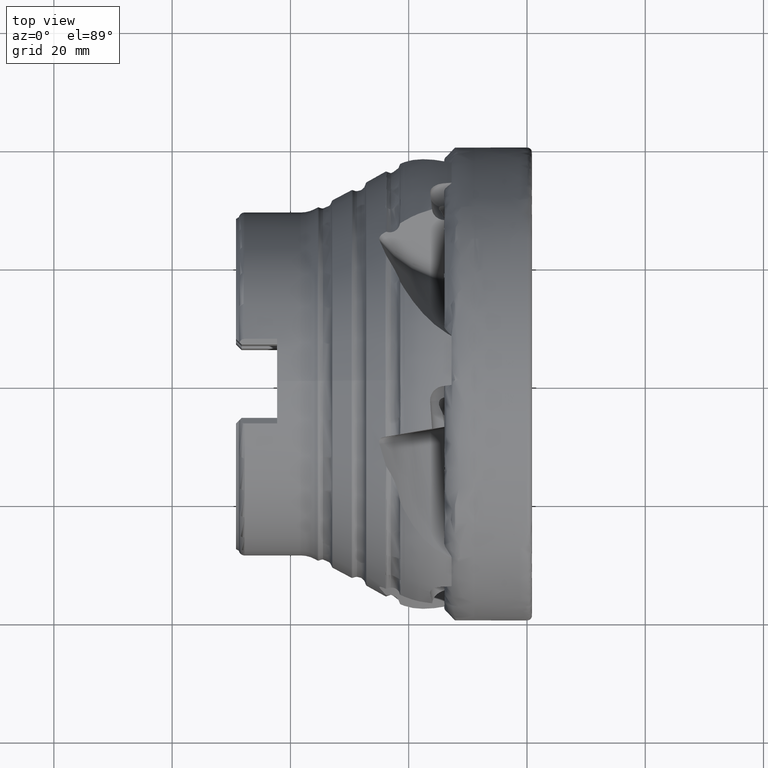
[diagram: clean part render]
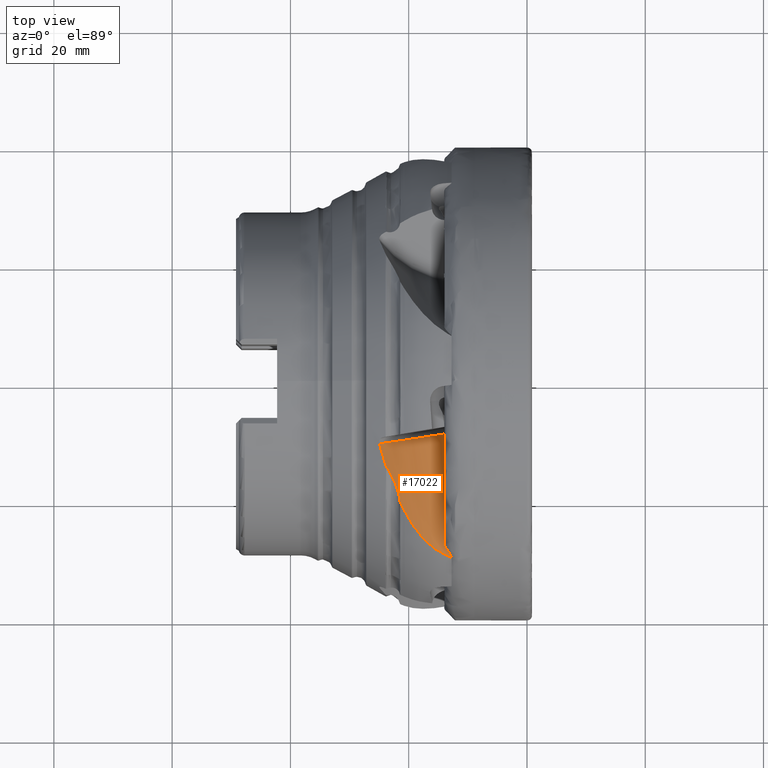
[diagram: same view with one face highlighted and labeled with its STEP entity id]
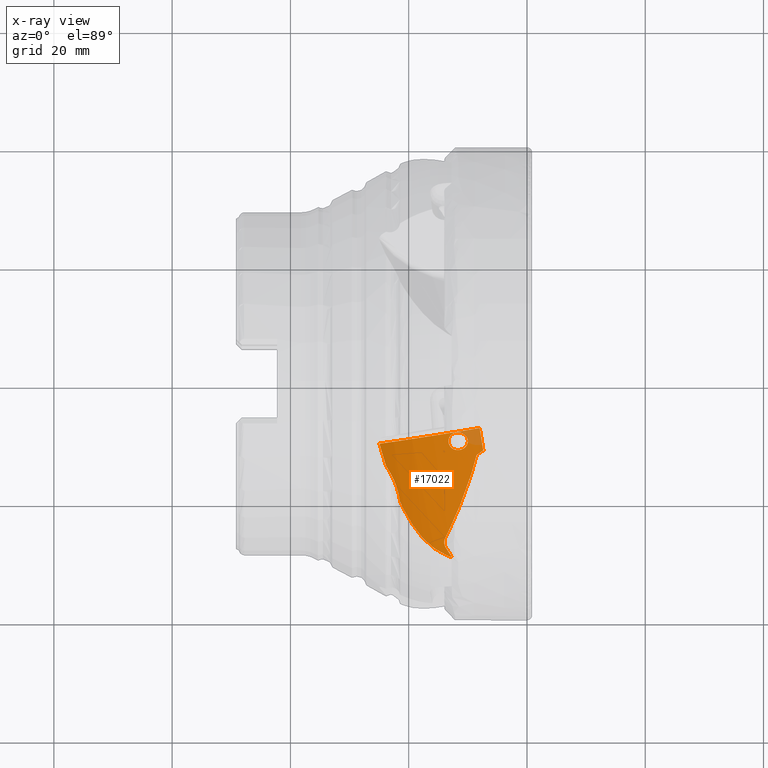
[diagram: x-ray of the same camera — body ghosted, the highlighted face saturated]
A machine part, top view. The second image highlights one B-rep face of the part: STEP entity #17022.
The next image is the same camera in x-ray: the body ghosted, the highlighted face saturated — about 3% of this face is hidden behind the body in this view.
In plain terms, the highlighted cylindrical surface (partial cylindrical patch) has radius 20 mm, axis along (-0.1638, 0.9865, 0).
Its self-contained STEP definition (entity closure, byte-faithful):
#49 = CARTESIAN_POINT ( 'NONE',  ( -20.71060675804168800, -21.95512964975771200, 30.57864173130839100 ) ) ;
#60 = CARTESIAN_POINT ( 'NONE',  ( -9.397821388298853100, -15.60492301776988100, 24.17309124987982500 ) ) ;
#121 = CARTESIAN_POINT ( 'NONE',  ( -10.63285918720822200, -19.18027089370615500, 24.49271617684729200 ) ) ;
#186 = CARTESIAN_POINT ( 'NONE',  ( -8.707843855915765400, -13.05600552155609700, 24.05850461342041100 ) ) ;
#236 = CARTESIAN_POINT ( 'NONE',  ( -12.14080814010427500, -11.56695254131454400, 24.55310286008555600 ) ) ;
#324 = CARTESIAN_POINT ( 'NONE',  ( -8.535374990792947300, -12.44977749979089600, 24.03971555522554800 ) ) ;
#390 = CARTESIAN_POINT ( 'NONE',  ( -12.85257890674882300, -29.49807343720421900, 25.80901738451186100 ) ) ;
#438 = CARTESIAN_POINT ( 'NONE',  ( -11.84042649782487200, -11.62090519122286700, 24.48624531469310400 ) ) ;
#454 = CARTESIAN_POINT ( 'NONE',  ( -12.81631945885016300, -29.60003660495140900, 25.80032052521527700 ) ) ;
#549 = CARTESIAN_POINT ( 'NONE',  ( -23.90414891483516200, -14.22991712703846900, 33.01407805609664300 ) ) ;
#554 = CARTESIAN_POINT ( 'NONE',  ( -13.09425404078191200, -9.350792459093611300, 24.70084090734974700 ) ) ;
#594 = CARTESIAN_POINT ( 'NONE',  ( -13.90066158967363000, -27.79125069774897800, 26.17292710160526400 ) ) ;
#688 = CARTESIAN_POINT ( 'NONE',  ( -12.10703246109797100, -8.660820440366695300, 24.43685761605888000 ) ) ;
#752 = CARTESIAN_POINT ( 'NONE',  ( -13.24726844424628400, -9.735414327371119100, 24.76062778497701400 ) ) ;
#769 = VERTEX_POINT ( 'NONE', #49 ) ;
#820 = CARTESIAN_POINT ( 'NONE',  ( -10.71392062296607700, -8.892441991227062900, 24.20017841245630000 ) ) ;
#1051 = VERTEX_POINT ( 'NONE', #6121 ) ;
#1250 = ORIENTED_EDGE ( 'NONE', *, *, #5968, .T. ) ;
#1551 = EDGE_CURVE ( 'NONE', #10118, #17521, #12502, .T. ) ;
#1560 = LINE ( 'NONE', #18422, #18521 ) ;
#1600 = CARTESIAN_POINT ( 'NONE',  ( -9.258180303263966200, -15.20758431430965800, 24.14726231843242500 ) ) ;
#1729 = CARTESIAN_POINT ( 'NONE',  ( -13.57502883414873700, -26.03335052417167400, 25.87552137378398200 ) ) ;
#2016 = VERTEX_POINT ( 'NONE', #5451 ) ;
#2032 = CARTESIAN_POINT ( 'NONE',  ( -23.94008879940601600, -14.11942172200002700, 33.04056395646595900 ) ) ;
#2073 = CARTESIAN_POINT ( 'NONE',  ( -12.74511561597952500, -8.974780038684503600, 24.59510663976425300 ) ) ;
#2106 = CARTESIAN_POINT ( 'NONE',  ( -13.14592246701856500, -29.03562113048948800, 25.90791619388559000 ) ) ;
#2177 = CARTESIAN_POINT ( 'NONE',  ( -12.76346602591059900, -29.72219532385015100, 25.78570960845969000 ) ) ;
#2198 = CARTESIAN_POINT ( 'NONE',  ( -17.08778751747197000, -27.08694863838224600, 28.06800678204128700 ) ) ;
#2207 = CARTESIAN_POINT ( 'NONE',  ( -12.48699570700334300, -8.809023359418754100, 24.52689547820032000 ) ) ;
#2253 = CARTESIAN_POINT ( 'NONE',  ( -22.35936535405833000, -17.13350953323777400, 31.56416039594680400 ) ) ;
#2262 = CARTESIAN_POINT ( 'NONE',  ( -13.42999999999995900, -29.51919403806454100, 26.08194901350538700 ) ) ;
#2314 = CARTESIAN_POINT ( 'NONE',  ( -21.53048751389065500, -19.92150285845965000, 31.12355815489597800 ) ) ;
#2336 = CARTESIAN_POINT ( 'NONE',  ( -11.49132761578521700, -8.626543230571817500, 24.31638937590887300 ) ) ;
#2456 = ORIENTED_EDGE ( 'NONE', *, *, #8383, .T. ) ;
#2462 = CARTESIAN_POINT ( 'NONE',  ( -20.28709862184996400, -22.77619035610779700, 30.26569559976471900 ) ) ;
#2772 = CARTESIAN_POINT ( 'NONE',  ( -13.29088836699721400, -10.14760420861476900, 24.79240412663882500 ) ) ;
#2821 = B_SPLINE_CURVE_WITH_KNOTS ( 'NONE', 3,
 ( #6273, #15150, #4570, #12331, #15350, #16864, #13829, #7759, #3298, #6087, #324, #12257, #4631, #9161, #7577, #4828, #3239, #12195, #16625, #186, #7824, #18381, #18120, #4761, #9361, #3171, #10860, #9092, #1600, #60, #10607, #7695, #12134, #3108, #13643, #6148, #16684, #121, #10671, #13704, #4694, #15210, #18245, #10734, #6217, #16741, #9225, #1729, #12459, #13951, #18643, #9424, #17057, #8158, #9621, #9496, #3440, #3644, #594, #11137, #7953, #14161, #14019, #4952, #13890, #12653, #2106, #15484, #10935, #390, #18513, #12582, #454, #5151, #2177, #6472 ),
 .UNSPECIFIED., .F., .F.,
 ( 4, 2, 2, 2, 2, 2, 2, 2, 2, 2, 2, 2, 2, 2, 2, 2, 2, 2, 2, 2, 2, 2, 2, 2, 2, 2, 2, 2, 2, 2, 2, 2, 2, 2, 2, 2, 2, 4 ),
 ( 2.122513393017275500E-015, 0.0006433988726404576100, 0.0009650983089596240100, 0.001286797745278790400, 0.001367222604358580100, 0.001407435033898478700, 0.001447647463438377300, 0.001528072322518175500, 0.001608497181597973400, 0.001930196617917177400, 0.002251896054236381200, 0.002573595490555585000, 0.003216994363193989100, 0.003860393235832393700, 0.004503792108470797800, 0.005147190981109202000, 0.005790589853747616500, 0.006433988726386029300, 0.007720786471662866200, 0.01029438196221655000, 0.01158117970749339200, 0.01286797745277023200, 0.01544157294332390200, 0.01608497181596231500, 0.01672837068860072800, 0.01705007012491993300, 0.01721091984307953500, 0.01737176956123914100, 0.01801516843387755300, 0.01833686787019675800, 0.01849771758835636400, 0.01865856730651597000, 0.01930196617915438300, 0.01994536505179279900, 0.02026706448811200700, 0.02034748934719181000, 0.02042791420627161300, 0.02058876392443123200 ),
 .UNSPECIFIED. ) ;
#2950 = VERTEX_POINT ( 'NONE', #18846 ) ;
#3067 = EDGE_CURVE ( 'NONE', #2950, #8026, #1560, .T. ) ;
#3108 = CARTESIAN_POINT ( 'NONE',  ( -9.808638441515947500, -16.79868645371663000, 24.26204843044984100 ) ) ;
#3171 = CARTESIAN_POINT ( 'NONE',  ( -9.043856120061963800, -14.38995117318135200, 24.10821876439419500 ) ) ;
#3239 = CARTESIAN_POINT ( 'NONE',  ( -8.587965537452907600, -12.62256974888015800, 24.04493958263275400 ) ) ;
#3242 = CARTESIAN_POINT ( 'NONE',  ( -23.00000000000001800, -15.79498028438163700, 32.10346544702017700 ) ) ;
#3298 = CARTESIAN_POINT ( 'NONE',  ( -8.485848212331902100, -12.42832325108346000, 24.03646605853603500 ) ) ;
#3313 = CARTESIAN_POINT ( 'NONE',  ( -12.73966423366992400, -29.76919298058437100, 25.77856938901809500 ) ) ;
#3331 = CARTESIAN_POINT ( 'NONE',  ( -24.95008533914213800, -10.70352656070407300, 33.73806442141466300 ) ) ;
#3353 = DIRECTION ( 'NONE',  ( -0.1638425078055066300, 0.9864865090998470300, -0.0000000000000000000 ) ) ;
#3355 = CARTESIAN_POINT ( 'NONE',  ( -24.30593584678823000, -12.99464299315018300, 33.31017496281936000 ) ) ;
#3440 = CARTESIAN_POINT ( 'NONE',  ( -14.00353961203974900, -27.38552056998068800, 26.19078570928230900 ) ) ;
#3488 = CARTESIAN_POINT ( 'NONE',  ( -12.84225546561468300, -11.16757283687776000, 24.71448174774152300 ) ) ;
#3587 = ORIENTED_EDGE ( 'NONE', *, *, #6566, .F. ) ;
#3591 = CYLINDRICAL_SURFACE ( 'NONE', #7435, 20.00000000000000700 ) ;
#3608 = CARTESIAN_POINT ( 'NONE',  ( -10.10510738398190300, -9.591686351005014500, 24.13734252941040700 ) ) ;
#3629 = CARTESIAN_POINT ( 'NONE',  ( -24.95008533914213800, -10.70352656070407300, 33.73806442141466300 ) ) ;
#3644 = CARTESIAN_POINT ( 'NONE',  ( -13.93201090923818900, -27.69166879555912100, 26.18037910938833000 ) ) ;
#3734 = CARTESIAN_POINT ( 'NONE',  ( -14.27648032242497900, -29.19550499933830400, 26.46972252501072400 ) ) ;
#3741 = CARTESIAN_POINT ( 'NONE',  ( -10.01480880102647800, -9.889085654242924400, 24.13265622213855000 ) ) ;
#3789 = CARTESIAN_POINT ( 'NONE',  ( -21.51366886119073000, -20.12009711113714200, 31.14255856361859600 ) ) ;
#3801 = CARTESIAN_POINT ( 'NONE',  ( -17.40217997283559000, -26.76650402803682000, 28.26751914672486200 ) ) ;
#3815 = VERTEX_POINT ( 'NONE', #2772 ) ;
#3875 = CARTESIAN_POINT ( 'NONE',  ( -9.998861117867367200, -10.09903441590612500, 24.13482808591580000 ) ) ;
#3931 = CARTESIAN_POINT ( 'NONE',  ( -16.09670532445418400, -27.97093741718208900, 27.46820297186543800 ) ) ;
#4014 = ORIENTED_EDGE ( 'NONE', *, *, #3067, .T. ) ;
#4122 = CARTESIAN_POINT ( 'NONE',  ( -19.83119669721524400, -23.56383438317879000, 29.93090384884813600 ) ) ;
#4452 = B_SPLINE_CURVE_WITH_KNOTS ( 'NONE', 3,
 ( #3789, #2314, #12733, #8173, #9824, #8378, #16035, #11210, #2253, #17269, #5498, #18926 ),
 .UNSPECIFIED., .F., .F.,
 ( 4, 2, 2, 2, 2, 4 ),
 ( 2.356536159495198100E-006, 0.0005949657468441797400, 0.001187574957528864400, 0.002372793378898223300, 0.003558011800267582500, 0.004743230221636941600 ),
 .UNSPECIFIED. ) ;
#4558 = AXIS2_PLACEMENT_3D ( 'NONE', #12381, #3353, #13876 ) ;
#4570 = CARTESIAN_POINT ( 'NONE',  ( -7.741383908416587200, -11.90345196235185000, 24.00281212538401100 ) ) ;
#4631 = CARTESIAN_POINT ( 'NONE',  ( -8.560513431342625900, -12.47978276758308300, 24.04161615364996200 ) ) ;
#4694 = CARTESIAN_POINT ( 'NONE',  ( -11.54860090418816500, -21.51734912238296700, 24.83341817192052800 ) ) ;
#4741 = CARTESIAN_POINT ( 'NONE',  ( -10.67016215160920800, -11.32741564794167700, 24.25391933402493200 ) ) ;
#4759 = CARTESIAN_POINT ( 'NONE',  ( -23.10383415565960500, -15.60094868470742600, 32.19892944907499600 ) ) ;
#4761 = CARTESIAN_POINT ( 'NONE',  ( -8.897151431378528500, -13.77228447161291800, 24.08401237749718500 ) ) ;
#4774 = CARTESIAN_POINT ( 'NONE',  ( -12.97206458974983800, -29.68962281761836400, 25.87640748077758300 ) ) ;
#4807 = CARTESIAN_POINT ( 'NONE',  ( -11.23421047758400900, -11.57059246270302900, 24.35982916771277100 ) ) ;
#4828 = CARTESIAN_POINT ( 'NONE',  ( -8.582398831960171400, -12.59672406576315500, 24.04428934802991700 ) ) ;
#4934 = CARTESIAN_POINT ( 'NONE',  ( -11.43376101048796100, -11.61027056248408800, 24.40004219565373600 ) ) ;
#4952 = CARTESIAN_POINT ( 'NONE',  ( -13.59931887410738400, -28.33679647379694400, 26.06846851295335600 ) ) ;
#5147 = ORIENTED_EDGE ( 'NONE', *, *, #14841, .F. ) ;
#5151 = CARTESIAN_POINT ( 'NONE',  ( -12.78773004733066000, -29.67552923087694000, 25.79311106846732200 ) ) ;
#5243 = CARTESIAN_POINT ( 'NONE',  ( -21.51366886119073000, -20.12009711113714200, 31.14255856361859600 ) ) ;
#5252 = CARTESIAN_POINT ( 'NONE',  ( -23.94008879940601600, -14.11942172200002700, 33.04056395646595900 ) ) ;
#5313 = VERTEX_POINT ( 'NONE', #10433 ) ;
#5321 = CARTESIAN_POINT ( 'NONE',  ( -18.29689212646819700, -25.77279816271774100, 28.85087300424727600 ) ) ;
#5323 = CARTESIAN_POINT ( 'NONE',  ( -21.35698739462250400, -20.65180553700222500, 31.06262091305763200 ) ) ;
#5451 = CARTESIAN_POINT ( 'NONE',  ( -21.35698739462250400, -20.65180553700222500, 31.06262091305763200 ) ) ;
#5498 = CARTESIAN_POINT ( 'NONE',  ( -22.82910811290597800, -16.11432054398665100, 31.94634929042348400 ) ) ;
#5943 = ORIENTED_EDGE ( 'NONE', *, *, #17668, .T. ) ;
#5968 = EDGE_CURVE ( 'NONE', #1051, #3815, #10904, .T. ) ;
#6087 = CARTESIAN_POINT ( 'NONE',  ( -8.521509389092832600, -12.44710432802009400, 24.03882899689518000 ) ) ;
#6121 = CARTESIAN_POINT ( 'NONE',  ( -9.998861117867367200, -10.09903441590612500, 24.13482808591580000 ) ) ;
#6148 = CARTESIAN_POINT ( 'NONE',  ( -10.06924596980385900, -17.59847993011053200, 24.32870495379036400 ) ) ;
#6217 = CARTESIAN_POINT ( 'NONE',  ( -12.87151986408066600, -24.55451172581969000, 25.46087355778149700 ) ) ;
#6257 = CARTESIAN_POINT ( 'NONE',  ( -12.04051856206612900, -11.59110018274753500, 24.53049768568055500 ) ) ;
#6273 = CARTESIAN_POINT ( 'NONE',  ( -7.389837275860950100, -11.65769035461391200, 24.00000000000000000 ) ) ;
#6320 = ORIENTED_EDGE ( 'NONE', *, *, #7719, .F. ) ;
#6374 = B_SPLINE_CURVE_WITH_KNOTS ( 'NONE', 3,
 ( #10857, #17053, #6402, #12520 ),
 .UNSPECIFIED., .F., .F.,
 ( 4, 4 ),
 ( 4.605732559596817100E-007, 0.001533659033535288200 ),
 .UNSPECIFIED. ) ;
#6377 = DIRECTION ( 'NONE',  ( -0.1638425078055066300, 0.9864865090998470300, 0.0000000000000000000 ) ) ;
#6402 = CARTESIAN_POINT ( 'NONE',  ( -21.14788859506796100, -21.09047108643592600, 30.90417394782539200 ) ) ;
#6453 = CARTESIAN_POINT ( 'NONE',  ( -10.23681556082980400, -10.88416077859336000, 24.18046411032318600 ) ) ;
#6472 = CARTESIAN_POINT ( 'NONE',  ( -12.73966423366992400, -29.76919298058437100, 25.77856938901809500 ) ) ;
#6522 = CARTESIAN_POINT ( 'NONE',  ( -11.53645350939751400, -11.62178212002515600, 24.42129125570421900 ) ) ;
#6566 = EDGE_CURVE ( 'NONE', #18596, #769, #16235, .T. ) ;
#6825 = CARTESIAN_POINT ( 'NONE',  ( -13.21636160291292900, -9.634522835826116300, 24.74728702173282400 ) ) ;
#6830 = EDGE_CURVE ( 'NONE', #2950, #5313, #2821, .T. ) ;
#6888 = CARTESIAN_POINT ( 'NONE',  ( -21.50563949276516200, -20.21490770331542200, 31.15162952100300200 ) ) ;
#7435 = AXIS2_PLACEMENT_3D ( 'NONE', #18504, #16736, #9484 ) ;
#7577 = CARTESIAN_POINT ( 'NONE',  ( -8.572435273956189800, -12.54478220226671700, 24.04307527300642300 ) ) ;
#7582 = B_SPLINE_CURVE_WITH_KNOTS ( 'NONE', 3,
 ( #10605, #4759, #15209, #16803, #7631, #16624 ),
 .UNSPECIFIED., .F., .F.,
 ( 4, 2, 4 ),
 ( 0.004743230221636941600, 0.005463370634080014600, 0.006183511046523086600 ),
 .UNSPECIFIED. ) ;
#7631 = CARTESIAN_POINT ( 'NONE',  ( -23.54544547751003200, -14.87780058783936400, 32.64503551197007900 ) ) ;
#7695 = CARTESIAN_POINT ( 'NONE',  ( -9.612719451122743000, -16.19857673955401700, 24.21653010505238200 ) ) ;
#7719 = EDGE_CURVE ( 'NONE', #10425, #10118, #8112, .T. ) ;
#7742 = CARTESIAN_POINT ( 'NONE',  ( -9.996014571036829100, -10.30697527249079400, 24.13847649973735800 ) ) ;
#7759 = CARTESIAN_POINT ( 'NONE',  ( -8.465225600734608900, -12.41105216979446800, 24.03508055458461400 ) ) ;
#7786 = CARTESIAN_POINT ( 'NONE',  ( -23.66625336517629200, -14.71819151967277300, 32.78234518539924400 ) ) ;
#7824 = CARTESIAN_POINT ( 'NONE',  ( -8.733403306850956200, -13.15873832997246900, 24.06177799957880100 ) ) ;
#7852 = CARTESIAN_POINT ( 'NONE',  ( -23.77480656102060400, -14.54082345156262900, 32.89827601411295200 ) ) ;
#7873 = CARTESIAN_POINT ( 'NONE',  ( -12.33297850300289500, -11.50143399104159800, 24.59693862062057700 ) ) ;
#7950 = EDGE_LOOP ( 'NONE', ( #5943, #1250 ) ) ;
#7953 = CARTESIAN_POINT ( 'NONE',  ( -13.82291903301375100, -27.98582109210965300, 26.15021413832161900 ) ) ;
#8026 = VERTEX_POINT ( 'NONE', #19053 ) ;
#8112 = B_SPLINE_CURVE_WITH_KNOTS ( 'NONE', 3,
 ( #7786, #16886, #7852, #10889, #549, #5252 ),
 .UNSPECIFIED., .F., .F.,
 ( 4, 2, 4 ),
 ( 3.966242301581244900E-007, 0.0003560846957622436100, 0.0007117727672943290400 ),
 .UNSPECIFIED. ) ;
#8158 = CARTESIAN_POINT ( 'NONE',  ( -13.96388580618332600, -26.86087241908366600, 26.12740518067816700 ) ) ;
#8173 = CARTESIAN_POINT ( 'NONE',  ( -21.63460922136062300, -19.33804568372522000, 31.13204608563872000 ) ) ;
#8193 = ORIENTED_EDGE ( 'NONE', *, *, #8955, .F. ) ;
#8330 = CARTESIAN_POINT ( 'NONE',  ( -12.66180237434311600, -8.913304838035539700, 24.57226783075820400 ) ) ;
#8378 = CARTESIAN_POINT ( 'NONE',  ( -21.83089705983355700, -18.57330535959997400, 31.21367030343509800 ) ) ;
#8383 = EDGE_CURVE ( 'NONE', #8026, #17521, #13497, .T. ) ;
#8396 = CARTESIAN_POINT ( 'NONE',  ( -13.29088836699721400, -10.14760420861476900, 24.79240412663882500 ) ) ;
#8679 = CARTESIAN_POINT ( 'NONE',  ( -23.66625336517629200, -14.71819151967277300, 32.78234518539924400 ) ) ;
#8717 = CARTESIAN_POINT ( 'NONE',  ( -18.83591701582287600, -25.06201240321907500, 29.22348867388362600 ) ) ;
#8955 = EDGE_CURVE ( 'NONE', #2016, #13027, #15226, .T. ) ;
#9092 = CARTESIAN_POINT ( 'NONE',  ( -9.194747155314804100, -15.00644173544353400, 24.13590400864691800 ) ) ;
#9161 = CARTESIAN_POINT ( 'NONE',  ( -8.569194916932382000, -12.51840496435122900, 24.04258208236034400 ) ) ;
#9208 = CARTESIAN_POINT ( 'NONE',  ( -13.29088836699721400, -10.14760420861476900, 24.79240412663882500 ) ) ;
#9225 = CARTESIAN_POINT ( 'NONE',  ( -13.39752462386332100, -25.66543182131047000, 25.76753941361971900 ) ) ;
#9237 = ORIENTED_EDGE ( 'NONE', *, *, #11288, .F. ) ;
#9280 = CARTESIAN_POINT ( 'NONE',  ( -11.73961723826206900, -11.62698006805046300, 24.46436402514052200 ) ) ;
#9361 = CARTESIAN_POINT ( 'NONE',  ( -8.948923006710382200, -13.97746543227071000, 24.09202479180664700 ) ) ;
#9424 = CARTESIAN_POINT ( 'NONE',  ( -13.91097630140508000, -26.71803101517376100, 26.08962761782416000 ) ) ;
#9484 = DIRECTION ( 'NONE',  ( -0.9864865090998469200, -0.1638425078055067700, 0.0000000000000000000 ) ) ;
#9496 = CARTESIAN_POINT ( 'NONE',  ( -14.01851950966830500, -27.16835705634420300, 26.18001523546230300 ) ) ;
#9621 = CARTESIAN_POINT ( 'NONE',  ( -13.97554751953487800, -26.91102786014218800, 26.13733298476120800 ) ) ;
#9824 = CARTESIAN_POINT ( 'NONE',  ( -21.67954234183387600, -19.14590737908504200, 31.14731544686402400 ) ) ;
#9841 = CARTESIAN_POINT ( 'NONE',  ( -11.28905802335640200, -8.660148208455204600, 24.28260373181535000 ) ) ;
#9854 = VERTEX_POINT ( 'NONE', #3242 ) ;
#10118 = VERTEX_POINT ( 'NONE', #18299 ) ;
#10425 = VERTEX_POINT ( 'NONE', #8679 ) ;
#10433 = CARTESIAN_POINT ( 'NONE',  ( -12.73966423366992400, -29.76919298058437100, 25.77856938901809500 ) ) ;
#10605 = CARTESIAN_POINT ( 'NONE',  ( -23.00000000000001800, -15.79498028438163700, 32.10346544702017700 ) ) ;
#10607 = CARTESIAN_POINT ( 'NONE',  ( -9.471222208859467500, -15.80221851918526000, 24.18724742036898700 ) ) ;
#10640 = FACE_BOUND ( 'NONE', #7950, .T. ) ;
#10671 = CARTESIAN_POINT ( 'NONE',  ( -10.92925147745098300, -19.96507230079872400, 24.59248818633252800 ) ) ;
#10734 = CARTESIAN_POINT ( 'NONE',  ( -12.53053753997720700, -23.80435686514483600, 25.28186207996947800 ) ) ;
#10778 = CARTESIAN_POINT ( 'NONE',  ( -12.42520990438041500, -11.46023256990548900, 24.61823883757677600 ) ) ;
#10857 = CARTESIAN_POINT ( 'NONE',  ( -20.71060675804168800, -21.95512964975771200, 30.57864173130839100 ) ) ;
#10860 = CARTESIAN_POINT ( 'NONE',  ( -9.089240638765213400, -14.59669880126186000, 24.11657538372756800 ) ) ;
#10889 = CARTESIAN_POINT ( 'NONE',  ( -23.86444702970903700, -14.33678078118607000, 32.98113633490834900 ) ) ;
#10904 = B_SPLINE_CURVE_WITH_KNOTS ( 'NONE', 3,
 ( #18363, #7742, #18227, #16973, #6453, #18292, #15259, #4741, #13817, #16904, #4807, #4934, #6522, #9280, #438, #6257, #236, #7873, #10778, #15529, #12443, #3488, #13749, #13874, #13937, #18432, #12314, #9208 ),
 .UNSPECIFIED., .F., .F.,
 ( 4, 2, 2, 2, 2, 2, 2, 2, 2, 2, 2, 2, 2, 4 ),
 ( 0.004986282221020165600, 0.005606650876136038200, 0.005916835203693977100, 0.006227019531251916000, 0.006847388186367788600, 0.007157572513925725000, 0.007467756841483661300, 0.007777941169041597600, 0.008088125496599533900, 0.008398309824157469300, 0.008708494151715406500, 0.009018678479273342000, 0.009328862806831279100, 0.009949231461947153500 ),
 .UNSPECIFIED. ) ;
#10935 = CARTESIAN_POINT ( 'NONE',  ( -12.91665583285938900, -29.38384333211711000, 25.82937475932244100 ) ) ;
#11137 = CARTESIAN_POINT ( 'NONE',  ( -13.84397184438043600, -27.93745242986130600, 26.15671656425836000 ) ) ;
#11162 = CARTESIAN_POINT ( 'NONE',  ( -16.43527252023050900, -27.68875724755070800, 27.66852761768525300 ) ) ;
#11163 = CARTESIAN_POINT ( 'NONE',  ( -21.48348016887480200, -20.30847219185059800, 31.14383489214240800 ) ) ;
#11169 = CARTESIAN_POINT ( 'NONE',  ( -10.89512124563114900, -8.795004427683871000, 24.22372601392518700 ) ) ;
#11210 = CARTESIAN_POINT ( 'NONE',  ( -22.21568734456664300, -17.48369708898041400, 31.45907471635408500 ) ) ;
#11288 = EDGE_CURVE ( 'NONE', #5313, #18596, #17392, .T. ) ;
#11356 = CARTESIAN_POINT ( 'NONE',  ( -21.39585282600767600, -20.57027027305581500, 31.09207163046271600 ) ) ;
#11364 = CARTESIAN_POINT ( 'NONE',  ( -10.38788932579549000, -9.154849496612026600, 24.16240484013949400 ) ) ;
#12134 = CARTESIAN_POINT ( 'NONE',  ( -9.680226484941638200, -16.39785651151576900, 24.23154766052747900 ) ) ;
#12195 = CARTESIAN_POINT ( 'NONE',  ( -8.618397895438848300, -12.75124131256031700, 24.04839755263283200 ) ) ;
#12257 = CARTESIAN_POINT ( 'NONE',  ( -8.556620612914086300, -12.46572098098304900, 24.04121724530560700 ) ) ;
#12314 = CARTESIAN_POINT ( 'NONE',  ( -13.28453338829389600, -10.35717918736342500, 24.80054929111774700 ) ) ;
#12331 = CARTESIAN_POINT ( 'NONE',  ( -8.004324879617986000, -12.08865340304961600, 24.01122101861107400 ) ) ;
#12342 = CARTESIAN_POINT ( 'NONE',  ( -13.20216765930412700, -29.60631576954119000, 25.97757878250816800 ) ) ;
#12381 = CARTESIAN_POINT ( 'NONE',  ( -8.015451015709162500, -7.890905272195770000, 44.00000000000001400 ) ) ;
#12443 = CARTESIAN_POINT ( 'NONE',  ( -12.68702784600736200, -11.30080684642359800, 24.67888850651513300 ) ) ;
#12459 = CARTESIAN_POINT ( 'NONE',  ( -13.66294268838414900, -26.21741927711756400, 25.93049602742426500 ) ) ;
#12502 = B_SPLINE_CURVE_WITH_KNOTS ( 'NONE', 3,
 ( #2032, #3355, #17045, #3629 ),
 .UNSPECIFIED., .F., .F.,
 ( 4, 4 ),
 ( 6.607448740793615100E-007, 0.003626689477043610100 ),
 .UNSPECIFIED. ) ;
#12520 = CARTESIAN_POINT ( 'NONE',  ( -21.35698739462250400, -20.65180553700222500, 31.06262091305763200 ) ) ;
#12582 = CARTESIAN_POINT ( 'NONE',  ( -12.82260767023508500, -29.57258946359194600, 25.80109829633309100 ) ) ;
#12653 = CARTESIAN_POINT ( 'NONE',  ( -13.25926184961418600, -28.86076042789909100, 25.94732789094923900 ) ) ;
#12733 = CARTESIAN_POINT ( 'NONE',  ( -21.56021650805164900, -19.72587466975030800, 31.12034187757976200 ) ) ;
#12752 = CARTESIAN_POINT ( 'NONE',  ( -10.25292371965885600, -9.312063620357465200, 24.14929461306548900 ) ) ;
#12818 = CARTESIAN_POINT ( 'NONE',  ( -15.03799087040648900, -28.75462035891186800, 26.86836168641240300 ) ) ;
#12891 = CARTESIAN_POINT ( 'NONE',  ( -10.06724413605394600, -9.688501397048131700, 24.13484871161222100 ) ) ;
#13027 = VERTEX_POINT ( 'NONE', #5243 ) ;
#13333 = ORIENTED_EDGE ( 'NONE', *, *, #15093, .F. ) ;
#13439 = ORIENTED_EDGE ( 'NONE', *, *, #19088, .F. ) ;
#13497 = CIRCLE ( 'NONE', #4558, 20.00000000000000700 ) ;
#13643 = CARTESIAN_POINT ( 'NONE',  ( -9.871687399335130000, -16.99945652846779300, 24.27782863824764800 ) ) ;
#13704 = CARTESIAN_POINT ( 'NONE',  ( -11.39159695971486700, -21.13094645109221800, 24.76975879373355500 ) ) ;
#13749 = CARTESIAN_POINT ( 'NONE',  ( -12.91280614537503100, -11.09386649340137200, 24.73042980550144100 ) ) ;
#13817 = CARTESIAN_POINT ( 'NONE',  ( -10.84914660047965300, -11.43270562712885800, 24.28588448763672500 ) ) ;
#13829 = CARTESIAN_POINT ( 'NONE',  ( -8.360714548440457200, -12.32690496263096100, 24.02828440126626900 ) ) ;
#13874 = CARTESIAN_POINT ( 'NONE',  ( -13.03927326458202500, -10.93165766755934100, 24.75798905216317900 ) ) ;
#13876 = DIRECTION ( 'NONE',  ( -0.9864865090998469200, -0.1638425078055065800, 0.0000000000000000000 ) ) ;
#13890 = CARTESIAN_POINT ( 'NONE',  ( -13.48765132983673200, -28.51255480950682000, 26.02852832318944800 ) ) ;
#13937 = CARTESIAN_POINT ( 'NONE',  ( -13.09530991615057600, -10.84236093899294000, 24.76960017832997700 ) ) ;
#13951 = CARTESIAN_POINT ( 'NONE',  ( -13.79957773573889100, -26.48992907613726900, 26.01710226818407900 ) ) ;
#14019 = CARTESIAN_POINT ( 'NONE',  ( -13.74592900798943500, -28.12231430361266500, 26.12322483078312300 ) ) ;
#14161 = CARTESIAN_POINT ( 'NONE',  ( -13.77423975982080200, -28.07870651573273700, 26.13367317598351000 ) ) ;
#14268 = CARTESIAN_POINT ( 'NONE',  ( -10.00029108271000700, -9.994575177469625900, 24.13299530261607400 ) ) ;
#14455 = CARTESIAN_POINT ( 'NONE',  ( -21.42908351320160800, -20.48540815631171300, 31.11449077398118500 ) ) ;
#14841 = EDGE_CURVE ( 'NONE', #13027, #9854, #4452, .T. ) ;
#15093 = EDGE_CURVE ( 'NONE', #9854, #10425, #7582, .T. ) ;
#15150 = CARTESIAN_POINT ( 'NONE',  ( -7.569424791869838700, -11.77516165293317800, 24.00000000000000700 ) ) ;
#15209 = CARTESIAN_POINT ( 'NONE',  ( -23.21051940655143800, -15.41255883152127400, 32.30118186453508900 ) ) ;
#15210 = CARTESIAN_POINT ( 'NONE',  ( -11.86806755791362600, -22.28570533299505700, 24.97055896292115000 ) ) ;
#15226 = B_SPLINE_CURVE_WITH_KNOTS ( 'NONE', 3,
 ( #5323, #11356, #14455, #11163, #6888, #17219 ),
 .UNSPECIFIED., .F., .F.,
 ( 4, 2, 4 ),
 ( 4.816754833038926400E-007, 0.0002813630025756040900, 0.0005622443296679043500 ),
 .UNSPECIFIED. ) ;
#15259 = CARTESIAN_POINT ( 'NONE',  ( -10.43497425826115000, -11.12225523980217200, 24.21355385611365200 ) ) ;
#15287 = CARTESIAN_POINT ( 'NONE',  ( -13.42999999999995900, -29.51919403806454100, 26.08194901350538700 ) ) ;
#15350 = CARTESIAN_POINT ( 'NONE',  ( -8.092018985869344800, -12.15027462495549800, 24.01472521856652500 ) ) ;
#15484 = CARTESIAN_POINT ( 'NONE',  ( -12.97598403221671700, -29.29817723940472300, 25.84988587860522500 ) ) ;
#15501 = EDGE_LOOP ( 'NONE', ( #19095, #4014, #2456, #16002, #6320, #13333, #5147, #8193, #13439, #3587, #9237 ) ) ;
#15529 = CARTESIAN_POINT ( 'NONE',  ( -12.60179819208686400, -11.36035437147105000, 24.65911317784884100 ) ) ;
#15643 = CARTESIAN_POINT ( 'NONE',  ( -13.42999999999995900, -29.51919403806454100, 26.08194901350538700 ) ) ;
#15656 = CARTESIAN_POINT ( 'NONE',  ( -13.29408079510650300, -10.04232406773729600, 24.78831239742130100 ) ) ;
#15787 = CARTESIAN_POINT ( 'NONE',  ( -11.90431451670927200, -8.626555537012800200, 24.39422508506760000 ) ) ;
#16002 = ORIENTED_EDGE ( 'NONE', *, *, #1551, .F. ) ;
#16035 = CARTESIAN_POINT ( 'NONE',  ( -21.95183258422435600, -18.20298045011394800, 31.28414528244571400 ) ) ;
#16235 = B_SPLINE_CURVE_WITH_KNOTS ( 'NONE', 3,
 ( #2262, #3734, #12818, #3931, #11162, #2198, #3801, #5321, #8717, #4122, #2462, #17739 ),
 .UNSPECIFIED., .F., .F.,
 ( 4, 2, 2, 2, 2, 4 ),
 ( 2.277962816828055100E-007, 0.002892627366585807300, 0.004338827151737872200, 0.005785026936889935000, 0.008677426507194057800, 0.01156982607749818000 ),
 .UNSPECIFIED. ) ;
#16624 = CARTESIAN_POINT ( 'NONE',  ( -23.66625336517629200, -14.71819151967277300, 32.78234518539924400 ) ) ;
#16625 = CARTESIAN_POINT ( 'NONE',  ( -8.651438906879970900, -12.85200406201121800, 24.05187414774046700 ) ) ;
#16684 = CARTESIAN_POINT ( 'NONE',  ( -10.20801099232029700, -17.99495691433268300, 24.36677948627723500 ) ) ;
#16736 = DIRECTION ( 'NONE',  ( -0.1638425078055066300, 0.9864865090998470300, 0.0000000000000000000 ) ) ;
#16741 = CARTESIAN_POINT ( 'NONE',  ( -13.30939450592150500, -25.48069855445414300, 25.71515465989917700 ) ) ;
#16803 = CARTESIAN_POINT ( 'NONE',  ( -23.43142938601700100, -15.05118489407510700, 32.52447245044160700 ) ) ;
#16864 = CARTESIAN_POINT ( 'NONE',  ( -8.267482611390327900, -12.27330757403086100, 24.02313981663322200 ) ) ;
#16886 = CARTESIAN_POINT ( 'NONE',  ( -23.72602377550052200, -14.63922399793172200, 32.85027995092566800 ) ) ;
#16904 = CARTESIAN_POINT ( 'NONE',  ( -11.13641579697546300, -11.54247611139834900, 24.34066213460162200 ) ) ;
#16973 = CARTESIAN_POINT ( 'NONE',  ( -10.18072947191356900, -10.79487297446611800, 24.17118037044457100 ) ) ;
#17022 = ADVANCED_FACE ( 'NONE', ( #17721, #10640 ), #3591, .F. ) ;
#17045 = CARTESIAN_POINT ( 'NONE',  ( -24.64128112114211400, -11.85592780363852600, 33.54431751807878500 ) ) ;
#17053 = CARTESIAN_POINT ( 'NONE',  ( -20.93253089465257600, -21.52488245309141500, 30.74262984420052500 ) ) ;
#17057 = CARTESIAN_POINT ( 'NONE',  ( -13.93223635348225800, -26.76410262036453200, 26.10383939518020900 ) ) ;
#17112 = B_SPLINE_CURVE_WITH_KNOTS ( 'NONE', 3,
 ( #8396, #15656, #17224, #752, #6825, #554, #17362, #2073, #8330, #2207, #18884, #688, #15787, #2336, #9841, #11169, #820, #11364, #12752, #3608, #12891, #3741, #14268, #3875 ),
 .UNSPECIFIED., .F., .F.,
 ( 4, 2, 2, 2, 2, 2, 2, 2, 2, 2, 2, 4 ),
 ( 0.0000000000000000000, 0.0003116426388137619200, 0.0006232852776275238400, 0.001246570555255041400, 0.001558213194068802600, 0.001869855832882563400, 0.002493141110510084100, 0.003116426388137603900, 0.003739711665765123700, 0.004362996943392643600, 0.004674639582206405000, 0.004986282221020165600 ),
 .UNSPECIFIED. ) ;
#17219 = CARTESIAN_POINT ( 'NONE',  ( -21.51366886119073000, -20.12009711113714200, 31.14255856361859600 ) ) ;
#17224 = CARTESIAN_POINT ( 'NONE',  ( -13.28582445063885600, -9.938861794987898800, 24.78103715302211500 ) ) ;
#17269 = CARTESIAN_POINT ( 'NONE',  ( -22.66564008822074100, -16.44966681398621200, 31.80743792877047900 ) ) ;
#17362 = CARTESIAN_POINT ( 'NONE',  ( -12.97094219654968100, -9.180426832865617100, 24.66032247135654400 ) ) ;
#17392 = B_SPLINE_CURVE_WITH_KNOTS ( 'NONE', 3,
 ( #3313, #4774, #12342, #15287 ),
 .UNSPECIFIED., .F., .F.,
 ( 4, 4 ),
 ( 0.009791526005842470700, 0.01058030403952718200 ),
 .UNSPECIFIED. ) ;
#17521 = VERTEX_POINT ( 'NONE', #3331 ) ;
#17668 = EDGE_CURVE ( 'NONE', #3815, #1051, #17112, .T. ) ;
#17721 = FACE_OUTER_BOUND ( 'NONE', #15501, .T. ) ;
#17739 = CARTESIAN_POINT ( 'NONE',  ( -20.71060675804168800, -21.95512964975771200, 30.57864173130839100 ) ) ;
#18120 = CARTESIAN_POINT ( 'NONE',  ( -8.813042551150317600, -13.46609500703138500, 24.07235390279239300 ) ) ;
#18227 = CARTESIAN_POINT ( 'NONE',  ( -10.04505746595089600, -10.51511694785466300, 24.14806568615987100 ) ) ;
#18245 = CARTESIAN_POINT ( 'NONE',  ( -12.02838400429067000, -22.66873827542010000, 25.04335838374469600 ) ) ;
#18292 = CARTESIAN_POINT ( 'NONE',  ( -10.36376453285864200, -11.04737041754475500, 24.20162158502958900 ) ) ;
#18299 = CARTESIAN_POINT ( 'NONE',  ( -23.94008879940601600, -14.11942172200002700, 33.04056395646595900 ) ) ;
#18363 = CARTESIAN_POINT ( 'NONE',  ( -9.998861117867367200, -10.09903441590612500, 24.13482808591580000 ) ) ;
#18381 = CARTESIAN_POINT ( 'NONE',  ( -8.785597768449511200, -13.36387898910819900, 24.06866758274423600 ) ) ;
#18422 = CARTESIAN_POINT ( 'NONE',  ( -3.264018289349467600, -36.49901403609133200, 24.00000000000000000 ) ) ;
#18432 = CARTESIAN_POINT ( 'NONE',  ( -13.23169484950629700, -10.56427492288332600, 24.79517327732630200 ) ) ;
#18504 = CARTESIAN_POINT ( 'NONE',  ( -3.264018289349469400, -36.49901403609133200, 44.00000000000001400 ) ) ;
#18513 = CARTESIAN_POINT ( 'NONE',  ( -12.84047869645922700, -29.52142538398123500, 25.80531552331621400 ) ) ;
#18521 = VECTOR ( 'NONE', #6377, 1000.000000000000000 ) ;
#18596 = VERTEX_POINT ( 'NONE', #15643 ) ;
#18643 = CARTESIAN_POINT ( 'NONE',  ( -13.84573151869154400, -26.58037466057475500, 26.04660932230011000 ) ) ;
#18846 = CARTESIAN_POINT ( 'NONE',  ( -7.389837275860950100, -11.65769035461391200, 24.00000000000000000 ) ) ;
#18884 = CARTESIAN_POINT ( 'NONE',  ( -12.39518389726696400, -8.765683224576774200, 24.50424567693831100 ) ) ;
#18926 = CARTESIAN_POINT ( 'NONE',  ( -23.00000000000001800, -15.79498028438163700, 32.10346544702017700 ) ) ;
#19053 = CARTESIAN_POINT ( 'NONE',  ( -8.015451015709159000, -7.890905272195772600, 24.00000000000000000 ) ) ;
#19088 = EDGE_CURVE ( 'NONE', #769, #2016, #6374, .T. ) ;
#19095 = ORIENTED_EDGE ( 'NONE', *, *, #6830, .F. ) ;